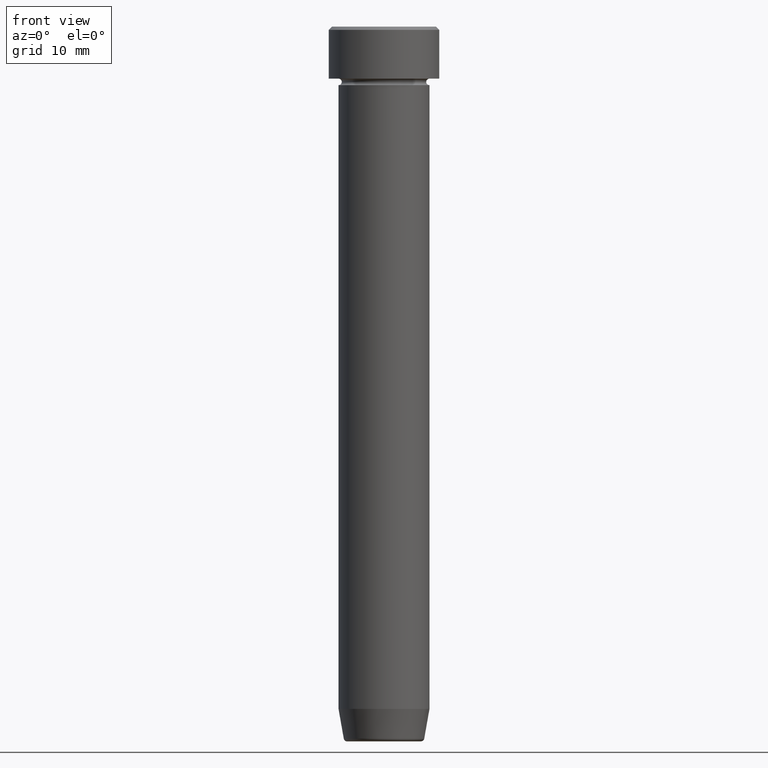
[diagram: clean part render]
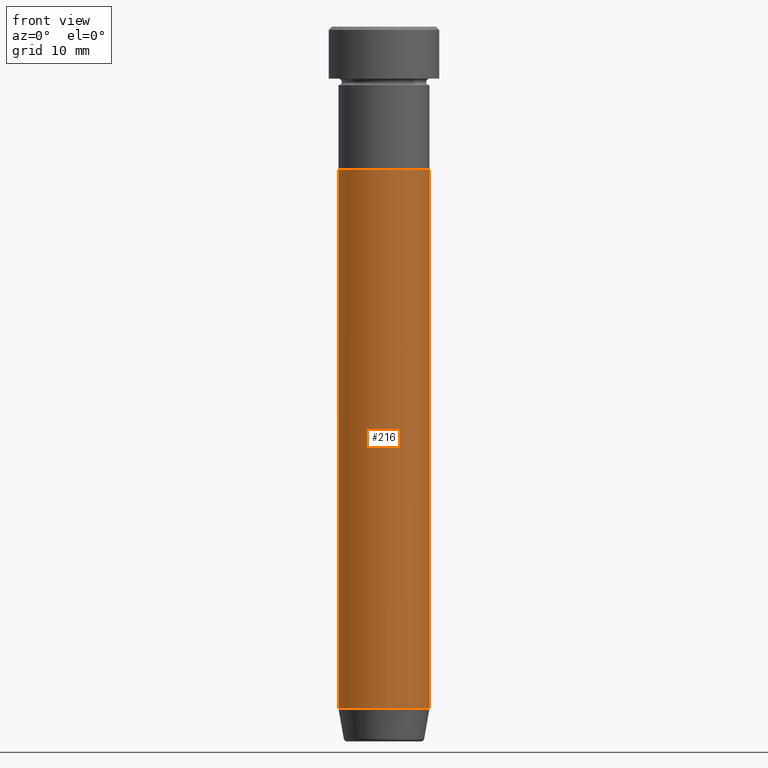
[diagram: same view with one face highlighted and labeled with its STEP entity id]
A machine part, front view. The second image highlights one B-rep face of the part: STEP entity #216.
In plain terms, the highlighted cylindrical surface (partial cylindrical patch) has radius 7 mm, axis along (-0, -0, 1).
Its self-contained STEP definition (entity closure, byte-faithful):
#3 = EDGE_CURVE ( 'NONE', #456, #457, #16, .T. ) ;
#16 = CIRCLE ( 'NONE', #176, 6.999999999999999112 ) ;
#24 = EDGE_CURVE ( 'NONE', #410, #456, #347, .T. ) ;
#35 = EDGE_CURVE ( 'NONE', #590, #457, #519, .T. ) ;
#66 = DIRECTION ( 'NONE',  ( -0.000000000000000000, -0.000000000000000000, 1.000000000000000000 ) ) ;
#92 = DIRECTION ( 'NONE',  ( 1.000000000000000000, 0.000000000000000000, 0.000000000000000000 ) ) ;
#105 = FACE_OUTER_BOUND ( 'NONE', #294, .T. ) ;
#138 = CARTESIAN_POINT ( 'NONE',  ( 0.000000000000000000, 0.000000000000000000, 0.000000000000000000 ) ) ;
#159 = EDGE_CURVE ( 'NONE', #410, #590, #427, .T. ) ;
#176 = AXIS2_PLACEMENT_3D ( 'NONE', #356, #573, #200 ) ;
#200 = DIRECTION ( 'NONE',  ( 1.000000000000000000, 0.000000000000000000, 0.000000000000000000 ) ) ;
#216 = ADVANCED_FACE ( 'NONE', ( #105 ), #443, .T. ) ;
#273 = CARTESIAN_POINT ( 'NONE',  ( -6.999999999999999112, 8.572527594031472204E-16, -22.00000000000000000 ) ) ;
#294 = EDGE_LOOP ( 'NONE', ( #491, #546, #492, #529 ) ) ;
#298 = DIRECTION ( 'NONE',  ( -0.000000000000000000, -0.000000000000000000, 1.000000000000000000 ) ) ;
#305 = VECTOR ( 'NONE', #298, 1000.000000000000000 ) ;
#326 = CARTESIAN_POINT ( 'NONE',  ( 0.000000000000000000, 0.000000000000000000, -104.9999999999999858 ) ) ;
#344 = CARTESIAN_POINT ( 'NONE',  ( -6.999999999999999112, 8.572527594031472204E-16, -104.9999999999999858 ) ) ;
#347 = LINE ( 'NONE', #522, #305 ) ;
#356 = CARTESIAN_POINT ( 'NONE',  ( 0.000000000000000000, 0.000000000000000000, -22.00000000000000000 ) ) ;
#375 = CARTESIAN_POINT ( 'NONE',  ( 6.999999999999999112, 0.000000000000000000, -22.00000000000000000 ) ) ;
#410 = VERTEX_POINT ( 'NONE', #344 ) ;
#427 = CIRCLE ( 'NONE', #503, 6.999999999999999112 ) ;
#443 = CYLINDRICAL_SURFACE ( 'NONE', #496, 6.999999999999999112 ) ;
#456 = VERTEX_POINT ( 'NONE', #273 ) ;
#457 = VERTEX_POINT ( 'NONE', #375 ) ;
#467 = DIRECTION ( 'NONE',  ( -0.000000000000000000, -0.000000000000000000, 1.000000000000000000 ) ) ;
#479 = DIRECTION ( 'NONE',  ( -0.000000000000000000, -0.000000000000000000, 1.000000000000000000 ) ) ;
#483 = CARTESIAN_POINT ( 'NONE',  ( 6.999999999999999112, 0.000000000000000000, 0.000000000000000000 ) ) ;
#487 = VECTOR ( 'NONE', #66, 1000.000000000000000 ) ;
#491 = ORIENTED_EDGE ( 'NONE', *, *, #24, .F. ) ;
#492 = ORIENTED_EDGE ( 'NONE', *, *, #35, .T. ) ;
#496 = AXIS2_PLACEMENT_3D ( 'NONE', #138, #479, #567 ) ;
#503 = AXIS2_PLACEMENT_3D ( 'NONE', #326, #467, #92 ) ;
#519 = LINE ( 'NONE', #483, #487 ) ;
#522 = CARTESIAN_POINT ( 'NONE',  ( -6.999999999999999112, 8.572527594031472204E-16, 0.000000000000000000 ) ) ;
#529 = ORIENTED_EDGE ( 'NONE', *, *, #3, .F. ) ;
#544 = CARTESIAN_POINT ( 'NONE',  ( 6.999999999999999112, 0.000000000000000000, -104.9999999999999858 ) ) ;
#546 = ORIENTED_EDGE ( 'NONE', *, *, #159, .T. ) ;
#567 = DIRECTION ( 'NONE',  ( 1.000000000000000000, 0.000000000000000000, 0.000000000000000000 ) ) ;
#573 = DIRECTION ( 'NONE',  ( -0.000000000000000000, -0.000000000000000000, 1.000000000000000000 ) ) ;
#590 = VERTEX_POINT ( 'NONE', #544 ) ;